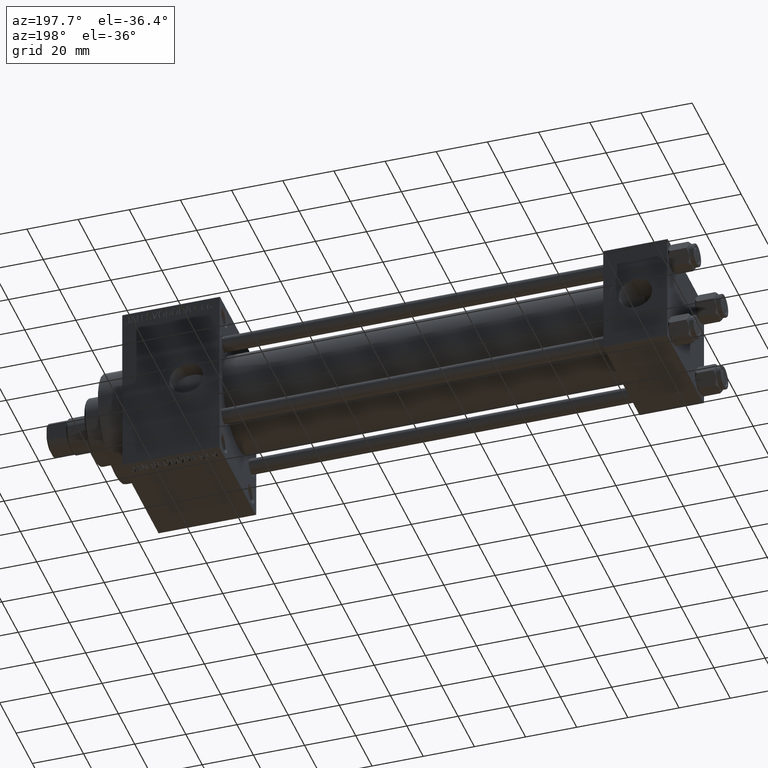
[diagram: clean part render]
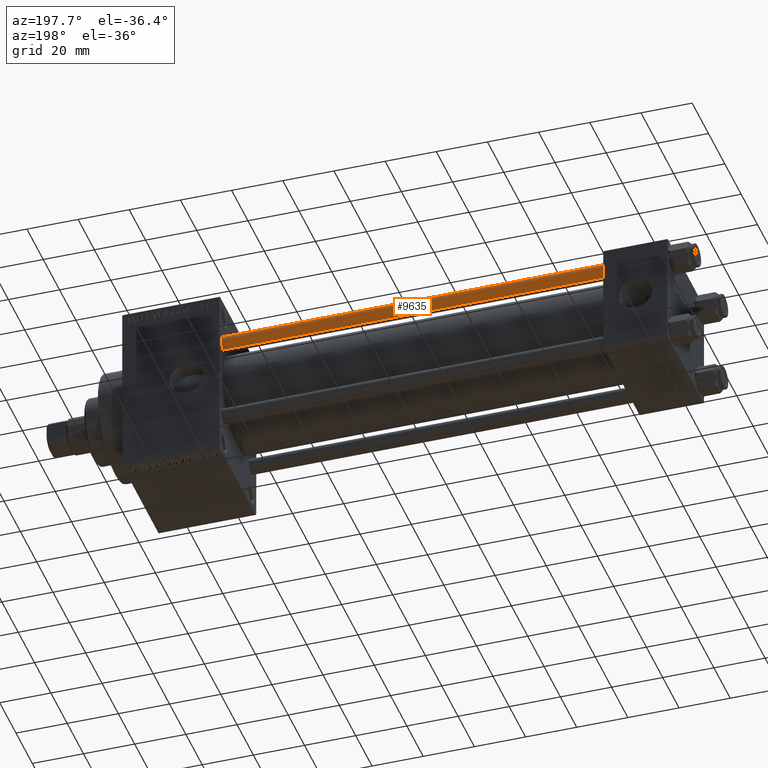
[diagram: same view with one face highlighted and labeled with its STEP entity id]
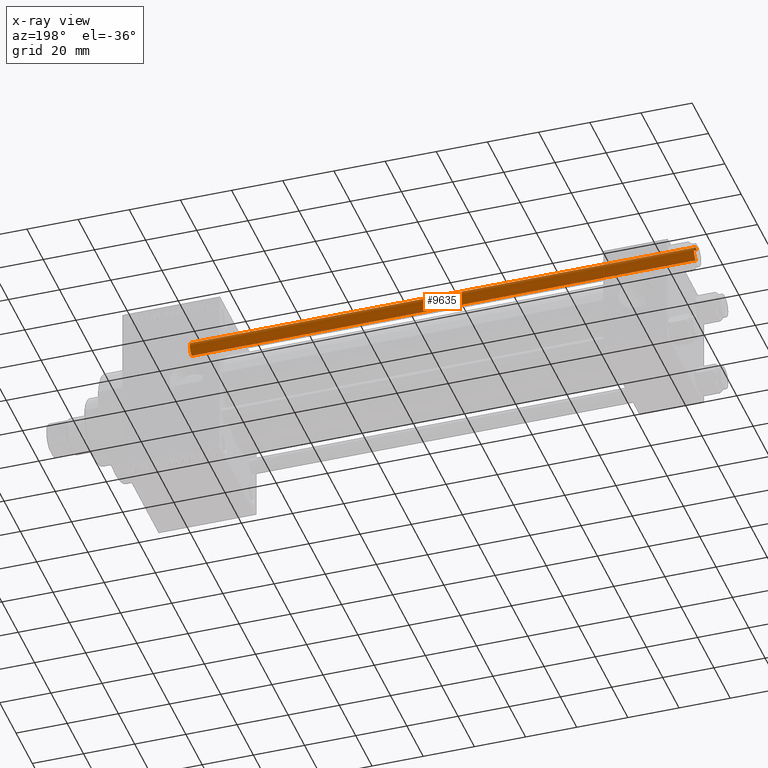
[diagram: x-ray of the same camera — body ghosted, the highlighted face saturated]
A machine part, auxiliary view. The second image highlights one B-rep face of the part: STEP entity #9635.
The next image is the same camera in x-ray: the body ghosted, the highlighted face saturated — about 0% of this face is hidden behind the body in this view.
In plain terms, the highlighted cylindrical surface (edge-blend (fillet) strip) has radius 3 mm, axis along (-1, -0, 0).
Its self-contained STEP definition (entity closure, byte-faithful):
#349 = FACE_OUTER_BOUND ( 'NONE', #20038, .T. ) ;
#2490 = CARTESIAN_POINT ( 'NONE',  ( -3.000000000000000444, 0.000000000000000000, 198.0000000000000000 ) ) ;
#2704 = ORIENTED_EDGE ( 'NONE', *, *, #41372, .T. ) ;
#3182 = ORIENTED_EDGE ( 'NONE', *, *, #4826, .T. ) ;
#4826 = EDGE_CURVE ( 'NONE', #15104, #24630, #12416, .T. ) ;
#6459 = LINE ( 'NONE', #2490, #26227 ) ;
#9635 = ADVANCED_FACE ( 'NONE', ( #349 ), #37061, .T. ) ;
#10046 = CARTESIAN_POINT ( 'NONE',  ( 3.000000000000000444, 3.673940397442060361E-16, 198.0000000000000000 ) ) ;
#11014 = CARTESIAN_POINT ( 'NONE',  ( 0.000000000000000000, 0.000000000000000000, 198.0000000000000000 ) ) ;
#11965 = VERTEX_POINT ( 'NONE', #15414 ) ;
#12416 = CIRCLE ( 'NONE', #25898, 3.000000000000000444 ) ;
#13044 = EDGE_CURVE ( 'NONE', #33352, #11965, #45190, .T. ) ;
#14619 = EDGE_CURVE ( 'NONE', #15104, #11965, #6459, .T. ) ;
#14623 = CARTESIAN_POINT ( 'NONE',  ( 0.000000000000000000, 0.000000000000000000, 0.4999999999999726885 ) ) ;
#14981 = DIRECTION ( 'NONE',  ( 0.000000000000000000, 0.000000000000000000, -1.000000000000000000 ) ) ;
#15104 = VERTEX_POINT ( 'NONE', #45000 ) ;
#15414 = CARTESIAN_POINT ( 'NONE',  ( -3.000000000000000444, 0.000000000000000000, 0.4999999999999726885 ) ) ;
#18215 = DIRECTION ( 'NONE',  ( -0.000000000000000000, -0.000000000000000000, -1.000000000000000000 ) ) ;
#18714 = DIRECTION ( 'NONE',  ( -1.000000000000000000, 0.000000000000000000, 0.000000000000000000 ) ) ;
#20038 = EDGE_LOOP ( 'NONE', ( #3182, #2704, #35081, #47544 ) ) ;
#21924 = DIRECTION ( 'NONE',  ( 1.000000000000000000, 0.000000000000000000, 0.000000000000000000 ) ) ;
#22059 = DIRECTION ( 'NONE',  ( -0.000000000000000000, -0.000000000000000000, 1.000000000000000000 ) ) ;
#22428 = DIRECTION ( 'NONE',  ( -0.000000000000000000, -0.000000000000000000, -1.000000000000000000 ) ) ;
#24630 = VERTEX_POINT ( 'NONE', #25997 ) ;
#25898 = AXIS2_PLACEMENT_3D ( 'NONE', #37809, #14981, #21924 ) ;
#25997 = CARTESIAN_POINT ( 'NONE',  ( 3.000000000000000444, 3.673940397442060361E-16, 197.5000000000000284 ) ) ;
#26059 = DIRECTION ( 'NONE',  ( -0.000000000000000000, -0.000000000000000000, -1.000000000000000000 ) ) ;
#26227 = VECTOR ( 'NONE', #26059, 1000.000000000000000 ) ;
#28847 = VECTOR ( 'NONE', #18215, 1000.000000000000000 ) ;
#29144 = LINE ( 'NONE', #10046, #28847 ) ;
#32599 = AXIS2_PLACEMENT_3D ( 'NONE', #14623, #22059, #45151 ) ;
#33352 = VERTEX_POINT ( 'NONE', #41868 ) ;
#34881 = AXIS2_PLACEMENT_3D ( 'NONE', #11014, #22428, #18714 ) ;
#35081 = ORIENTED_EDGE ( 'NONE', *, *, #13044, .T. ) ;
#37061 = CYLINDRICAL_SURFACE ( 'NONE', #34881, 3.000000000000000444 ) ;
#37809 = CARTESIAN_POINT ( 'NONE',  ( 0.000000000000000000, 0.000000000000000000, 197.5000000000000284 ) ) ;
#41372 = EDGE_CURVE ( 'NONE', #24630, #33352, #29144, .T. ) ;
#41868 = CARTESIAN_POINT ( 'NONE',  ( 3.000000000000000444, 3.673940397442060361E-16, 0.4999999999999726885 ) ) ;
#45000 = CARTESIAN_POINT ( 'NONE',  ( -3.000000000000000444, 0.000000000000000000, 197.5000000000000284 ) ) ;
#45151 = DIRECTION ( 'NONE',  ( 1.000000000000000000, 0.000000000000000000, 0.000000000000000000 ) ) ;
#45190 = CIRCLE ( 'NONE', #32599, 3.000000000000000444 ) ;
#47544 = ORIENTED_EDGE ( 'NONE', *, *, #14619, .F. ) ;